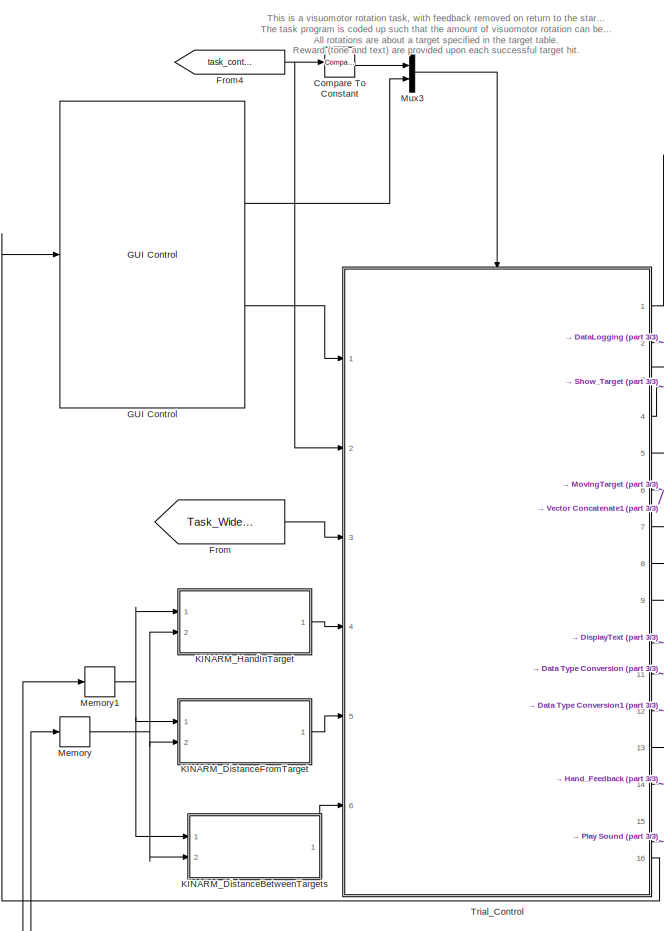
[diagram: root canvas - part 1/3, center side, full height]
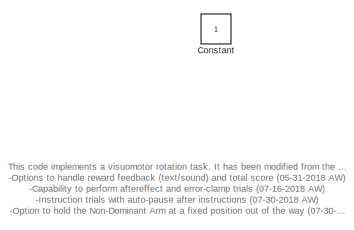
[diagram: root canvas - part 2/3, top left region]
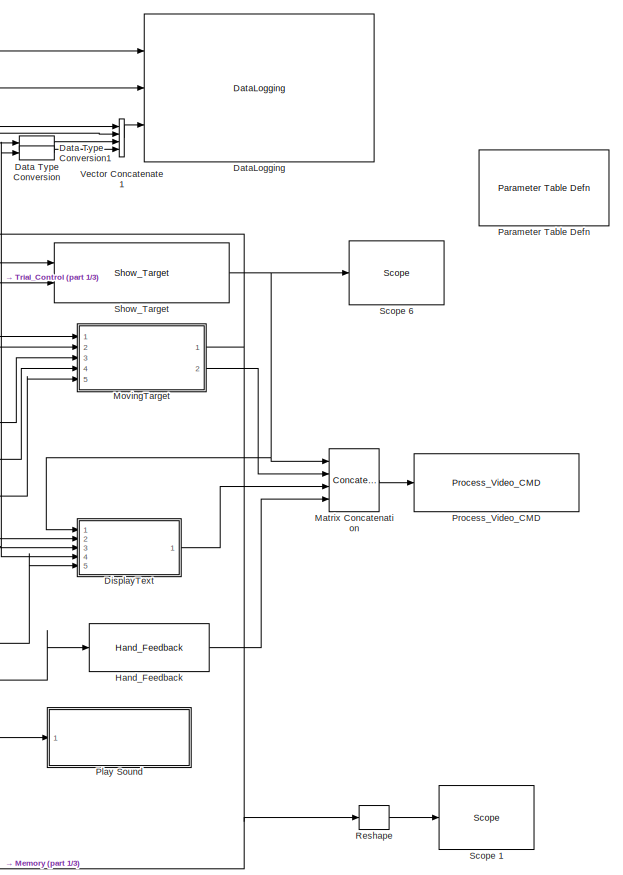
[diagram: root canvas - part 3/3, right side, full height]
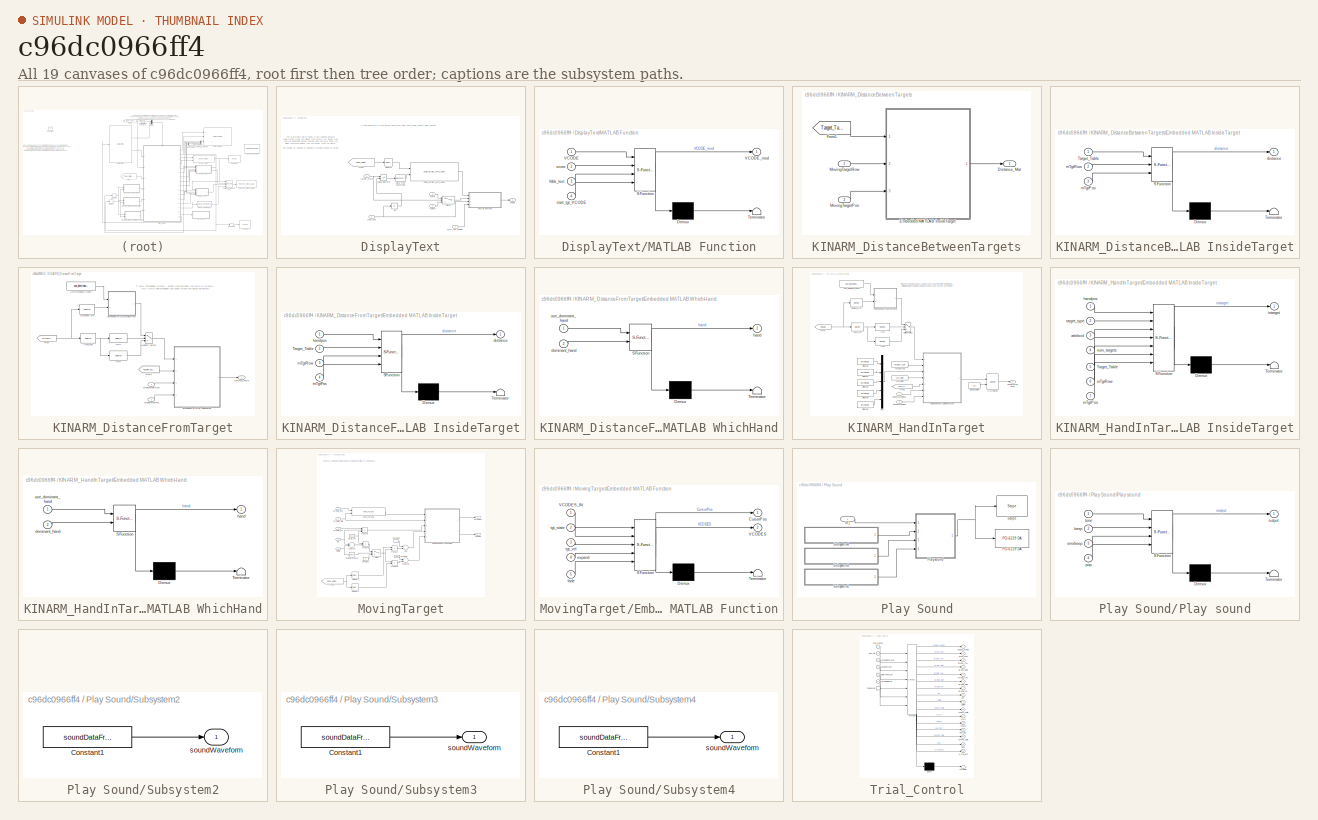
[diagram: thumbnail index - all 19 canvases of the model, root first then tree order]
MODEL slx_c96dc0966ff4
KIND model
CONFIG AbsTol = auto
CONFIG FixedStep = BKIN_STEP_TIME
CONFIG MaxStep = auto
CONFIG MinStep = auto
CONFIG RelTol = 1e-3
CONFIG SampleTimeConstraint = Unconstrained
CONFIG Solver = ode4
CONFIG SolverMode = MultiTasking
CONFIG SolverName = ode4
CONFIG StartFcn =  warndlg('Dexterit-E models cannot run under simulation. Please compile your model and run it from within Dexterit-E.');set_param(bdroot,'SimulationCommand','stop')
CONFIG StartTime = 0.0
CONFIG StopTime = inf
WORKSPACE source: MAT-file member
WORKSPACE BKIN_STEP_TIME = 0.00025
WORKSPACE col_x = 1
WORKSPACE START_TARGET_COL = 1
WORKSPACE END_TARGET_COL = 2
BLOCK [Reference] Compare To Constant  REF=simulink/Logic and Bit
Operations/Compare
To Constant
  OutDataTypeStr = boolean
  Ports = [1, 1]
  SourceBlock = simulink/Logic and Bit\nOperations/Compare\nTo Constant
  SourceType = Compare To Constant
  ZeroCross = on
  const = 1.0
  relop = >
BLOCK [Constant] Constant
  IOType = siggen
BLOCK [DataTypeConversion] Data Type Conversion
  RndMeth = Floor
  SaturateOnIntegerOverflow = off
BLOCK [DataTypeConversion] Data Type Conversion1
  RndMeth = Floor
  SaturateOnIntegerOverflow = off
BLOCK [Reference] DataLogging  REF=General/DataLogging
  Ports = [3]
  SourceBlock = General/DataLogging
  SourceType = DataLogging
  ecat_include = on
  log_analog_inputs = on
  log_event_codes = on
  show_time_remaining = off
BLOCK [SubSystem] DisplayText
  Ports = [5, 1]
  RequestExecContextInheritance = off
BLOCK [Abs] DisplayText/Abs
  SaturateOnIntegerOverflow = off
BLOCK [DataTypeConversion] DisplayText/Data Type Conversion
  OutDataTypeStr = double
  RndMeth = Floor
  SaturateOnIntegerOverflow = off
BLOCK [From] DisplayText/From
  GotoTag = Task_Wide_Parameters
  TagVisibility = global
BLOCK [Logic] DisplayText/Logical Operator
  AllPortsSameDT = off
  Operator = OR
  OutDataTypeStr = boolean
  Ports = [2, 1]
BLOCK [SubSystem] DisplayText/MATLAB Function
  ErrorFcn = Stateflow.Translate.translate
  PermitHierarchicalResolution = ExplicitOnly
  Ports = [4, 1]
  RequestExecContextInheritance = off
  SFBlockType = MATLAB Function
  TreatAsAtomicUnit = on
BLOCK [Demux] DisplayText/MATLAB Function/ Demux 
  Outputs = 1
  Ports = [1, 1]
BLOCK [S-Function] DisplayText/MATLAB Function/ SFunction 
  EnableBusSupport = on
  FunctionName = sf_sfun
  PortCounts = [4 2]
  Ports = [4, 2]
  Tag = Stateflow S-Function bubblechase 6
BLOCK [Terminator] DisplayText/MATLAB Function/ Terminator 
BLOCK [Inport] DisplayText/MATLAB Function/VCODE
  IconDisplay = Port number
BLOCK [Outport] DisplayText/MATLAB Function/VCODE_mod
  IconDisplay = Port number
BLOCK [Inport] DisplayText/MATLAB Function/fdbk_text
  IconDisplay = Port number
  Port = 3
BLOCK [Inport] DisplayText/MATLAB Function/score
  IconDisplay = Port number
  Port = 2
BLOCK [Inport] DisplayText/MATLAB Function/start_tgt_VCODE
  IconDisplay = Port number
  Port = 4
BLOCK [Selector] DisplayText/Selector
  Indices = [K_SCORETEXT_ROW]
  Ports = [1, 1]
BLOCK [Reference] DisplayText/Show_Target_With_Label  REF=Video/Show_Target_With_Label
  Ports = [2, 1]
  SourceBlock = Video/Show_Target_With_Label
  SourceType = Show_Target_With_Label
  attribcol1 = [COLOR 0 0 VISUAL_RADIUS VISUAL_RADIUS 0 LABEL COLOR LABEL_HEIGHT]
  attribcol2 = [0 0 0 0 0 0 0 0 0]
  attribcol3 = [0 0 0 0 0 0 0 0 0]
  attribcol4 = [0 0 0 0 0 0 0 0 0]
  attribcol5 = [0 0 0 0 0 0 0 0 0]
  num_states = 1
  opacity = 100
  source = dialog
  stateindices_padding = [0 0;0 0;0 0;0 0;0 0]
  target_display = Both subject and operator displays
  target_type = Rectangle
BLOCK [Switch] DisplayText/Switch
  Criteria = u2 > Threshold
  InputSameDT = off
  SaturateOnIntegerOverflow = off
  Threshold = 1.5
BLOCK [Outport] DisplayText/VCODE
  IconDisplay = Port number
BLOCK [Inport] DisplayText/fdbk_text
  IconDisplay = Port number
  OutDataTypeStr = int32
  Port = 5
BLOCK [Inport] DisplayText/reward
  IconDisplay = Port number
  OutDataTypeStr = int32
  Port = 4
BLOCK [Inport] DisplayText/score
  IconDisplay = Port number
  OutDataTypeStr = int32
  Port = 3
BLOCK [Inport] DisplayText/start_tgt_VCODE
  IconDisplay = Port number
  OutDataTypeStr = double
BLOCK [Inport] DisplayText/target_state
  IconDisplay = Port number
  OutDataTypeStr = double
  Port = 2
BLOCK [From] From
  GotoTag = Task_Wide_Parameters
  TagVisibility = global
BLOCK [From] From4
  GotoTag = task_control_button
  TagVisibility = global
BLOCK [Reference] GUI Control  REF=General/GUI Control
  Lcols = 4
  Ports = [1, 2]
  SourceBlock = General/GUI Control
  SourceType = GUI Control
  Target_Type = 1
  Vcols = 3
  XYcols = [1 2]
  indices_padding = [0 0 0 0;0 0 0 0]
  load_table_rows = 20
  show_repeat_trial_flag = off
  target_table_rows = 32
  target_type_str = Circle
  task_version = 1.0
  tp_table_rows = 50
  use_custom_tp = off
BLOCK [Reference] Hand_Feedback  REF=KINARM_general/Hand_Feedback
  Ports = [1, 1]
  SourceBlock = KINARM_general/Hand_Feedback
  SourceType = Hand_Feedback
  feedback_cntl_src = status only
BLOCK [SubSystem] KINARM_DistanceBetweenTargets
  Ports = [2, 1]
  RequestExecContextInheritance = off
BLOCK [Outport] KINARM_DistanceBetweenTargets/Distance_Mat
  IconDisplay = Port number
BLOCK [SubSystem] KINARM_DistanceBetweenTargets/Embedded MATLAB InsideTarget
  ErrorFcn = Stateflow.Translate.translate
  PermitHierarchicalResolution = ExplicitOnly
  Ports = [3, 1]
  RequestExecContextInheritance = off
  SFBlockType = MATLAB Function
  TreatAsAtomicUnit = on
BLOCK [Demux] KINARM_DistanceBetweenTargets/Embedded MATLAB InsideTarget/ Demux 
  Outputs = 1
  Ports = [1, 1]
BLOCK [S-Function] KINARM_DistanceBetweenTargets/Embedded MATLAB InsideTarget/ SFunction 
  EnableBusSupport = on
  FunctionName = sf_sfun
  PortCounts = [3 2]
  Ports = [3, 2]
  Tag = Stateflow S-Function bubblechase 8
BLOCK [Terminator] KINARM_DistanceBetweenTargets/Embedded MATLAB InsideTarget/ Terminator 
BLOCK [Inport] KINARM_DistanceBetweenTargets/Embedded MATLAB InsideTarget/Target_Table
  IconDisplay = Port number
BLOCK [Outport] KINARM_DistanceBetweenTargets/Embedded MATLAB InsideTarget/distance
  IconDisplay = Port number
BLOCK [Inport] KINARM_DistanceBetweenTargets/Embedded MATLAB InsideTarget/mTgtPos
  IconDisplay = Port number
  Port = 3
BLOCK [Inport] KINARM_DistanceBetweenTargets/Embedded MATLAB InsideTarget/mTgtRow
  IconDisplay = Port number
  Port = 2
BLOCK [From] KINARM_DistanceBetweenTargets/From1
  CloseFcn = tagdialog Close
  GotoTag = Target_Table
  TagVisibility = global
BLOCK [Inport] KINARM_DistanceBetweenTargets/MovingTargetPos
  IconDisplay = Port number
  Port = 2
BLOCK [Inport] KINARM_DistanceBetweenTargets/MovingTargetRow
  IconDisplay = Port number
BLOCK [SubSystem] KINARM_DistanceFromTarget
  Ports = [2, 1]
  RequestExecContextInheritance = off
BLOCK [Selector] KINARM_DistanceFromTarget/Arm1
  IndexOptions = Index vector (dialog),Select all
  Indices = 1,-1
  InputPortWidth = 3
  NumberOfDimensions = 2
  OutputSizes = slselsubs([(-2),(-2)],1),slselsubs([(-2),(-2)],2)
  Ports = [1, 1]
BLOCK [Selector] KINARM_DistanceFromTarget/Arm2
  IndexOptions = Index vector (dialog),Select all
  Indices = 2,-1
  InputPortWidth = 3
  NumberOfDimensions = 2
  OutputSizes = slselsubs([(-2),(-2)],1),slselsubs([(-2),(-2)],2)
  Ports = [1, 1]
BLOCK [Outport] KINARM_DistanceFromTarget/Distance_Vector
  IconDisplay = Port number
BLOCK [Selector] KINARM_DistanceFromTarget/Dominant_Arm
  IndexOptions = Index vector (dialog),Index vector (dialog)
  Indices = [3],[1]
  InputPortWidth = 3
  NumberOfDimensions = 2
  OutputSizes = slselsubs([(-2),(-2)],1),slselsubs([(-2),(-2)],2)
  Ports = [1, 1]
BLOCK [SubSystem] KINARM_DistanceFromTarget/Embedded MATLAB InsideTarget
  ErrorFcn = Stateflow.Translate.translate
  PermitHierarchicalResolution = ExplicitOnly
  Ports = [4, 1]
  RequestExecContextInheritance = off
  SFBlockType = MATLAB Function
  TreatAsAtomicUnit = on
BLOCK [Demux] KINARM_DistanceFromTarget/Embedded MATLAB InsideTarget/ Demux 
  Outputs = 1
  Ports = [1, 1]
BLOCK [S-Function] KINARM_DistanceFromTarget/Embedded MATLAB InsideTarget/ SFunction 
  EnableBusSupport = on
  FunctionName = sf_sfun
  PortCounts = [4 2]
  Ports = [4, 2]
  Tag = Stateflow S-Function bubblechase 5
BLOCK [Terminator] KINARM_DistanceFromTarget/Embedded MATLAB InsideTarget/ Terminator 
BLOCK [Inport] KINARM_DistanceFromTarget/Embedded MATLAB InsideTarget/Target_Table
  IconDisplay = Port number
  Port = 2
BLOCK [Outport] KINARM_DistanceFromTarget/Embedded MATLAB InsideTarget/distance
  IconDisplay = Port number
BLOCK [Inport] KINARM_DistanceFromTarget/Embedded MATLAB InsideTarget/handpos
  IconDisplay = Port number
BLOCK [Inport] KINARM_DistanceFromTarget/Embedded MATLAB InsideTarget/mTgtPos
  IconDisplay = Port number
  Port = 4
BLOCK [Inport] KINARM_DistanceFromTarget/Embedded MATLAB InsideTarget/mTgtRow
  IconDisplay = Port number
  Port = 3
BLOCK [SubSystem] KINARM_DistanceFromTarget/Embedded MATLAB WhichHand
  ErrorFcn = Stateflow.Translate.translate
  PermitHierarchicalResolution = ExplicitOnly
  Ports = [2, 1]
  RequestExecContextInheritance = off
  SFBlockType = MATLAB Function
  TreatAsAtomicUnit = on
BLOCK [Demux] KINARM_DistanceFromTarget/Embedded MATLAB WhichHand/ Demux 
  Outputs = 1
  Ports = [1, 1]
BLOCK [S-Function] KINARM_DistanceFromTarget/Embedded MATLAB WhichHand/ SFunction 
  EnableBusSupport = on
  FunctionName = sf_sfun
  PortCounts = [2 2]
  Ports = [2, 2]
  Tag = Stateflow S-Function bubblechase 4
BLOCK [Terminator] KINARM_DistanceFromTarget/Embedded MATLAB WhichHand/ Terminator 
BLOCK [Inport] KINARM_DistanceFromTarget/Embedded MATLAB WhichHand/dominant_hand
  IconDisplay = Port number
  Port = 2
BLOCK [Outport] KINARM_DistanceFromTarget/Embedded MATLAB WhichHand/hand
  IconDisplay = Port number
BLOCK [Inport] KINARM_DistanceFromTarget/Embedded MATLAB WhichHand/use_dominant_hand
  IconDisplay = Port number
BLOCK [From] KINARM_DistanceFromTarget/From
  CloseFcn = tagdialog Close
  GotoTag = KINdata
  TagVisibility = global
BLOCK [From] KINARM_DistanceFromTarget/From1
  CloseFcn = tagdialog Close
  GotoTag = Target_Table
  TagVisibility = global
BLOCK [Selector] KINARM_DistanceFromTarget/Hand_Pos
  IndexOptions = Select all,Index vector (dialog)
  Indices = -1,[23,24]
  InputPortWidth = 3
  NumberOfDimensions = 2
  OutputSizes = slselsubs([(-2),(-2)],1),slselsubs([(-2),(-2)],2)
  Ports = [1, 1]
BLOCK [Inport] KINARM_DistanceFromTarget/MovingTargetPos
  IconDisplay = Port number
  Port = 2
BLOCK [Inport] KINARM_DistanceFromTarget/MovingTargetRow
  IconDisplay = Port number
BLOCK [MultiPortSwitch] KINARM_DistanceFromTarget/Multiport Switch
  InputSameDT = off
  Inputs = 2
  Ports = [3, 1]
  SaturateOnIntegerOverflow = off
BLOCK [Constant] KINARM_DistanceFromTarget/Use_Dominant_Hand?
  Value = use_dominant_hand
BLOCK [SubSystem] KINARM_HandInTarget
  Ports = [2, 1]
  RequestExecContextInheritance = off
BLOCK [Selector] KINARM_HandInTarget/Arm1
  IndexOptions = Index vector (dialog),Select all
  Indices = 1,-1
  InputPortWidth = 3
  NumberOfDimensions = 2
  OutputSizes = slselsubs([(-2),(-2)],1),slselsubs([(-2),(-2)],2)
  Ports = [1, 1]
BLOCK [Selector] KINARM_HandInTarget/Arm2
  IndexOptions = Index vector (dialog),Select all
  Indices = 2,-1
  InputPortWidth = 3
  NumberOfDimensions = 2
  OutputSizes = slselsubs([(-2),(-2)],1),slselsubs([(-2),(-2)],2)
  Ports = [1, 1]
BLOCK [Selector] KINARM_HandInTarget/Array Selector
  IndexOptions = Select all,Index vector (port)
  Indices = -1,1
  InputPortWidth = 3
  NumberOfDimensions = 2
  OutputSizes = slselsubs([(-2),(-2)],1),slselsubs([(-2),(-2)],2)
  Ports = [2, 1]
BLOCK [Selector] KINARM_HandInTarget/Dominant_Arm
  IndexOptions = Index vector (dialog),Index vector (dialog)
  Indices = [3],[1]
  InputPortWidth = 3
  NumberOfDimensions = 2
  OutputSizes = slselsubs([(-2),(-2)],1),slselsubs([(-2),(-2)],2)
  Ports = [1, 1]
BLOCK [SubSystem] KINARM_HandInTarget/Embedded MATLAB InsideTarget
  ErrorFcn = Stateflow.Translate.translate
  PermitHierarchicalResolution = ExplicitOnly
  Ports = [7, 1]
  RTWFileNameOpts = Use function name
  RTWSystemCode = Nonreusable function
  RequestExecContextInheritance = off
  SFBlockType = MATLAB Function
  TreatAsAtomicUnit = on
BLOCK [Demux] KINARM_HandInTarget/Embedded MATLAB InsideTarget/ Demux 
  Outputs = 1
  Ports = [1, 1]
BLOCK [S-Function] KINARM_HandInTarget/Embedded MATLAB InsideTarget/ SFunction 
  EnableBusSupport = on
  FunctionName = sf_sfun
  PortCounts = [7 2]
  Ports = [7, 2]
  Tag = Stateflow S-Function bubblechase 2
BLOCK [Terminator] KINARM_HandInTarget/Embedded MATLAB InsideTarget/ Terminator 
BLOCK [Inport] KINARM_HandInTarget/Embedded MATLAB InsideTarget/Target_Table
  IconDisplay = Port number
  Port = 5
BLOCK [Inport] KINARM_HandInTarget/Embedded MATLAB InsideTarget/attribcol
  IconDisplay = Port number
  Port = 3
BLOCK [Inport] KINARM_HandInTarget/Embedded MATLAB InsideTarget/handpos
  IconDisplay = Port number
BLOCK [Outport] KINARM_HandInTarget/Embedded MATLAB InsideTarget/intarget
  IconDisplay = Port number
BLOCK [Inport] KINARM_HandInTarget/Embedded MATLAB InsideTarget/mTgtPos
  IconDisplay = Port number
  Port = 7
BLOCK [Inport] KINARM_HandInTarget/Embedded MATLAB InsideTarget/mTgtRow
  IconDisplay = Port number
  Port = 6
BLOCK [Inport] KINARM_HandInTarget/Embedded MATLAB InsideTarget/num_targets
  IconDisplay = Port number
  Port = 4
BLOCK [Inport] KINARM_HandInTarget/Embedded MATLAB InsideTarget/target_type
  IconDisplay = Port number
  Port = 2
BLOCK [SubSystem] KINARM_HandInTarget/Embedded MATLAB WhichHand
  ErrorFcn = Stateflow.Translate.translate
  PermitHierarchicalResolution = ExplicitOnly
  Ports = [2, 1]
  RequestExecContextInheritance = off
  SFBlockType = MATLAB Function
  TreatAsAtomicUnit = on
BLOCK [Demux] KINARM_HandInTarget/Embedded MATLAB WhichHand/ Demux 
  Outputs = 1
  Ports = [1, 1]
BLOCK [S-Function] KINARM_HandInTarget/Embedded MATLAB WhichHand/ SFunction 
  EnableBusSupport = on
  FunctionName = sf_sfun
  PortCounts = [2 2]
  Ports = [2, 2]
  Tag = Stateflow S-Function bubblechase 9
BLOCK [Terminator] KINARM_HandInTarget/Embedded MATLAB WhichHand/ Terminator 
BLOCK [Inport] KINARM_HandInTarget/Embedded MATLAB WhichHand/dominant_hand
  IconDisplay = Port number
  Port = 2
BLOCK [Outport] KINARM_HandInTarget/Embedded MATLAB WhichHand/hand
  IconDisplay = Port number
BLOCK [Inport] KINARM_HandInTarget/Embedded MATLAB WhichHand/use_dominant_hand
  IconDisplay = Port number
BLOCK [From] KINARM_HandInTarget/From
  CloseFcn = tagdialog Close
  GotoTag = KINdata
  TagVisibility = global
BLOCK [From] KINARM_HandInTarget/From1
  CloseFcn = tagdialog Close
  GotoTag = Target_Table
  TagVisibility = global
BLOCK [Outport] KINARM_HandInTarget/HandInTarget_Vector
  IconDisplay = Port number
BLOCK [Selector] KINARM_HandInTarget/Hand_Pos
  IndexOptions = Select all,Index vector (dialog)
  Indices = -1,[23,24]
  InputPortWidth = 3
  NumberOfDimensions = 2
  OutputSizes = slselsubs([(-2),(-2)],1),slselsubs([(-2),(-2)],2)
  Ports = [1, 1]
BLOCK [Inport] KINARM_HandInTarget/MovingTargetPos
  IconDisplay = Port number
  Port = 2
BLOCK [Inport] KINARM_HandInTarget/MovingTargetRow
  IconDisplay = Port number
BLOCK [MultiPortSwitch] KINARM_HandInTarget/Multiport Switch
  InputSameDT = off
  Inputs = 2
  Ports = [3, 1]
  SaturateOnIntegerOverflow = off
BLOCK [Mux] KINARM_HandInTarget/Mux
  DisplayOption = bar
  Inputs = 5
  Ports = [5, 1]
BLOCK [Constant] KINARM_HandInTarget/Selected States
  Value = [1]
BLOCK [Constant] KINARM_HandInTarget/Target_Type
  Value = target_type
BLOCK [Constant] KINARM_HandInTarget/Use_Dominant_Hand?
  Value = use_dominant_hand
BLOCK [Constant] KINARM_HandInTarget/attribcol1
  Value = attribcol1
BLOCK [Constant] KINARM_HandInTarget/attribcol2
  Value = attribcol2
BLOCK [Constant] KINARM_HandInTarget/attribcol3
  Value = attribcol3
BLOCK [Constant] KINARM_HandInTarget/attribcol4
  Value = attribcol4
BLOCK [Constant] KINARM_HandInTarget/attribcol5
  Value = attribcol5
BLOCK [Constant] KINARM_HandInTarget/num_states
  Value = num_states
BLOCK [Concatenate] Matrix Concatenation
  Mode = Multidimensional array
  NumInputs = 4
  Ports = [4, 1]
BLOCK [Memory] Memory
  InheritSampleTime = on
BLOCK [Memory] Memory1
  InheritSampleTime = on
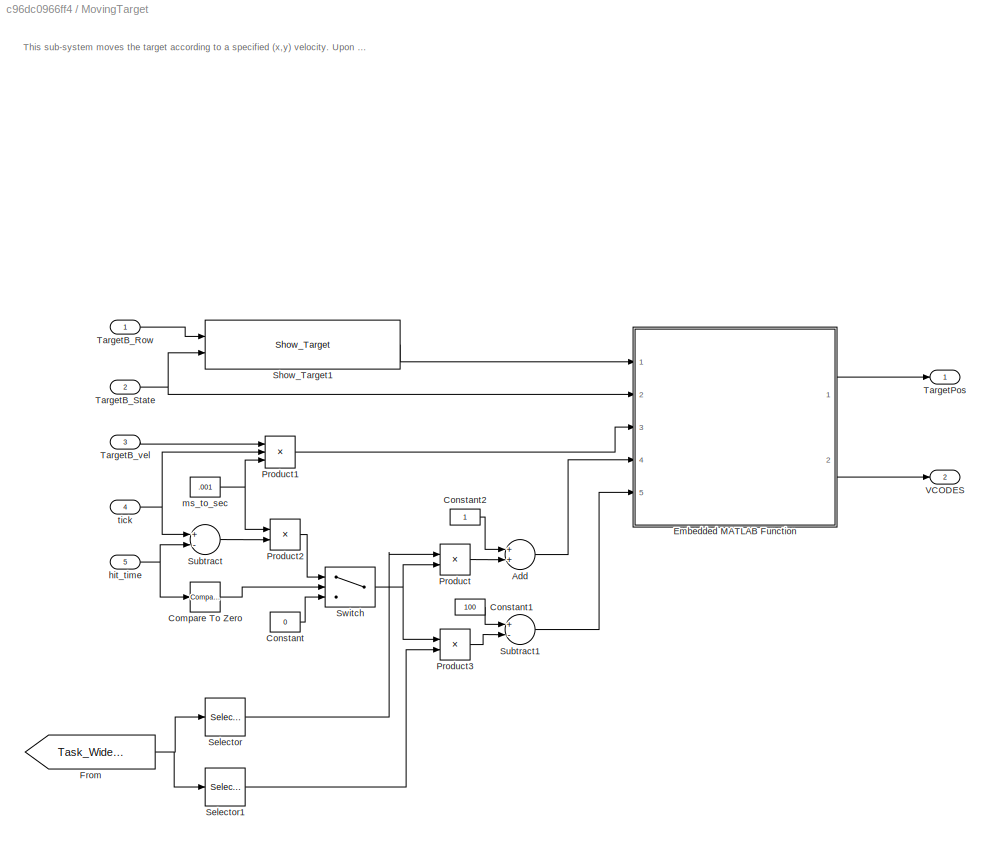
BLOCK [SubSystem] MovingTarget
  Ports = [5, 2]
  RequestExecContextInheritance = off
BLOCK [Sum] MovingTarget/Add
  InputSameDT = off
  OutDataTypeStr = Inherit: Inherit via internal rule
  Ports = [2, 1]
  SaturateOnIntegerOverflow = off
BLOCK [Reference] MovingTarget/Compare To Zero  REF=simulink/Logic and Bit
Operations/Compare
To Zero
  OutDataTypeStr = boolean
  Ports = [1, 1]
  SourceBlock = simulink/Logic and Bit\nOperations/Compare\nTo Zero
  SourceType = Compare To Zero
  ZeroCross = on
  relop = >=
BLOCK [Constant] MovingTarget/Constant
  Value = 0
BLOCK [Constant] MovingTarget/Constant1
  Value = 100
BLOCK [Constant] MovingTarget/Constant2
BLOCK [SubSystem] MovingTarget/Embedded MATLAB Function
  ErrorFcn = Stateflow.Translate.translate
  PermitHierarchicalResolution = ExplicitOnly
  Ports = [5, 2]
  RequestExecContextInheritance = off
  SFBlockType = MATLAB Function
  TreatAsAtomicUnit = on
BLOCK [Demux] MovingTarget/Embedded MATLAB Function/ Demux 
  Outputs = 1
  Ports = [1, 1]
BLOCK [S-Function] MovingTarget/Embedded MATLAB Function/ SFunction 
  EnableBusSupport = on
  FunctionName = sf_sfun
  PortCounts = [5 3]
  Ports = [5, 3]
  Tag = Stateflow S-Function bubblechase 3
BLOCK [Terminator] MovingTarget/Embedded MATLAB Function/ Terminator 
BLOCK [Outport] MovingTarget/Embedded MATLAB Function/CursorPos
  IconDisplay = Port number
BLOCK [Outport] MovingTarget/Embedded MATLAB Function/VCODES
  IconDisplay = Port number
  Port = 2
BLOCK [Inport] MovingTarget/Embedded MATLAB Function/VCODES_IN
  IconDisplay = Port number
BLOCK [Inport] MovingTarget/Embedded MATLAB Function/expand
  IconDisplay = Port number
  Port = 4
BLOCK [Inport] MovingTarget/Embedded MATLAB Function/fade
  IconDisplay = Port number
  Port = 5
BLOCK [Inport] MovingTarget/Embedded MATLAB Function/tgt_state
  IconDisplay = Port number
  Port = 2
BLOCK [Inport] MovingTarget/Embedded MATLAB Function/tgt_vel
  IconDisplay = Port number
  Port = 3
BLOCK [From] MovingTarget/From
  GotoTag = Task_Wide_Parameters
  TagVisibility = global
BLOCK [Product] MovingTarget/Product
  InputSameDT = off
  OutDataTypeStr = Inherit: Inherit via internal rule
  Ports = [2, 1]
  RndMeth = Floor
  SaturateOnIntegerOverflow = off
BLOCK [Product] MovingTarget/Product1
  InputSameDT = off
  Inputs = 3
  OutDataTypeStr = Inherit: Inherit via internal rule
  Ports = [3, 1]
  RndMeth = Floor
  SaturateOnIntegerOverflow = off
BLOCK [Product] MovingTarget/Product2
  InputSameDT = off
  OutDataTypeStr = Inherit: Inherit via internal rule
  Ports = [2, 1]
  RndMeth = Floor
  SaturateOnIntegerOverflow = off
BLOCK [Product] MovingTarget/Product3
  InputSameDT = off
  OutDataTypeStr = Inherit: Inherit via internal rule
  Ports = [2, 1]
  RndMeth = Floor
  SaturateOnIntegerOverflow = off
BLOCK [Selector] MovingTarget/Selector
  Indices = [K_POP_R_EXPAND]
  InputPortWidth = 50
  Ports = [1, 1]
BLOCK [Selector] MovingTarget/Selector1
  Indices = [K_POP_FADE]
  InputPortWidth = 50
  Ports = [1, 1]
BLOCK [Reference] MovingTarget/Show_Target1  REF=Video/Show_Target
  Ports = [2, 1]
  SourceBlock = Video/Show_Target
  SourceType = Show_Target
  attribcol1 = [COLOR STROKE_COLOR STROKE_WIDTH VISUAL_RADIUS]
  attribcol2 = [0 STROKE_COLOR STROKE_WIDTH VISUAL_RADIUS]
  attribcol3 = [0 0 0 0]
  attribcol4 = [0 0 0 0]
  attribcol5 = [0 0 0 0]
  num_col = 4
  num_states = 2
  opacity = 100
  source = dialog
  stateindices_padding = [0 0 0 0 0 0 0;0 0 0 0 0 0 0;0 0 0 0 0 0 0;0 0 0 0 0 0 0;0 0 0 0 0 0 0]
  target_display = Both subject and operator displays
  target_type = Circle
BLOCK [Sum] MovingTarget/Subtract
  InputSameDT = off
  Inputs = +-
  OutDataTypeStr = Inherit: Inherit via internal rule
  Ports = [2, 1]
  SaturateOnIntegerOverflow = off
BLOCK [Sum] MovingTarget/Subtract1
  InputSameDT = off
  Inputs = +-
  OutDataTypeStr = Inherit: Inherit via internal rule
  Ports = [2, 1]
  SaturateOnIntegerOverflow = off
BLOCK [Switch] MovingTarget/Switch
  Criteria = u2 > Threshold
  InputSameDT = off
  SaturateOnIntegerOverflow = off
BLOCK [Inport] MovingTarget/TargetB_Row
  IconDisplay = Port number
BLOCK [Inport] MovingTarget/TargetB_State
  IconDisplay = Port number
  Port = 2
BLOCK [Inport] MovingTarget/TargetB_vel
  IconDisplay = Port number
  Port = 3
BLOCK [Outport] MovingTarget/TargetPos
  IconDisplay = Port number
BLOCK [Outport] MovingTarget/VCODES
  IconDisplay = Port number
  Port = 2
BLOCK [Inport] MovingTarget/hit_time
  IconDisplay = Port number
  Port = 5
BLOCK [Constant] MovingTarget/ms_to_sec
  Value = .001
BLOCK [Inport] MovingTarget/tick
  IconDisplay = Port number
  Port = 4
BLOCK [Mux] Mux3
  DisplayOption = bar
  Inputs = 2
  Ports = [2, 1]
BLOCK [Reference] Parameter Table Defn  REF=General/Parameter Table Defn
  Ports = []
  ShowInLibBrowser = 0
  SourceBlock = General/Parameter Table Defn
  UserDataPersistent = on
BLOCK [SubSystem] Play Sound
  Ports = [1]
  RequestExecContextInheritance = off
BLOCK [Inport] Play Sound/In1
  IconDisplay = Signal name
BLOCK [Reference] Play Sound/PCI-6229 DA  REF=xpcnilib/D//A/M Series/PCI-6229 DA
  Ports = [1]
  SourceBlock = xpcnilib/D//A/M Series/PCI-6229 DA
  SourceType = danipci6229
  channel = [1]
  initValue = [0]
  reset = [1]
  sampletime = -1
  slot = -1
BLOCK [SubSystem] Play Sound/Play sound
  ErrorFcn = Stateflow.Translate.translate
  PermitHierarchicalResolution = ExplicitOnly
  Ports = [4, 1]
  RequestExecContextInheritance = off
  SFBlockType = MATLAB Function
  TreatAsAtomicUnit = on
BLOCK [Demux] Play Sound/Play sound/ Demux 
  Outputs = 1
  Ports = [1, 1]
BLOCK [S-Function] Play Sound/Play sound/ SFunction 
  EnableBusSupport = on
  FunctionName = sf_sfun
  PortCounts = [4 2]
  Ports = [4, 2]
  Tag = Stateflow S-Function bubblechase 7
BLOCK [Terminator] Play Sound/Play sound/ Terminator 
BLOCK [Inport] Play Sound/Play sound/beep
  IconDisplay = Port number
  Port = 2
BLOCK [Inport] Play Sound/Play sound/errorbeep
  IconDisplay = Port number
  Port = 3
BLOCK [Outport] Play Sound/Play sound/output
  IconDisplay = Port number
BLOCK [Inport] Play Sound/Play sound/pop
  IconDisplay = Port number
  Port = 4
BLOCK [Inport] Play Sound/Play sound/tone
  IconDisplay = Port number
BLOCK [Reference] Play Sound/Scope   REF=slrtlib/Displays and
Logging/Scope 
  Ports = [1]
  SourceBlock = slrtlib/Displays and\nLogging/Scope
  SourceType = xpcscopeblock
  autorestart = off
  autostart = on
  dynamicfilemode = off
  filename = data.dat
  formatstr = '%15.6f'
  grid = on
  interleave = 1
  maxwritefilesize = 512*1024^2
  mode = Lazy
  noprepostsamples = 0
  nosamples = 4000
  scopeno = 1
  scopetype = Target
  triggerlevel = 0.0
  triggermode = FreeRun
  triggersample = 0
  triggerscope = 1
  triggersignal = 1
  triggerslope = Either
  trigsignalfromport = off
  viewmode = Graphical redraw
  writesize = 512
  ylimits = [0,0]
BLOCK [SubSystem] Play Sound/Subsystem2
  Ports = [0, 1]
  RequestExecContextInheritance = off
BLOCK [Constant] Play Sound/Subsystem2/Constant1
  Value = soundDataFromFile
BLOCK [Outport] Play Sound/Subsystem2/soundWaveform
  IconDisplay = Port number
BLOCK [SubSystem] Play Sound/Subsystem3
  Ports = [0, 1]
  RequestExecContextInheritance = off
BLOCK [Constant] Play Sound/Subsystem3/Constant1
  Value = soundDataFromFile
BLOCK [Outport] Play Sound/Subsystem3/soundWaveform
  IconDisplay = Port number
BLOCK [SubSystem] Play Sound/Subsystem4
  Ports = [0, 1]
  RequestExecContextInheritance = off
BLOCK [Constant] Play Sound/Subsystem4/Constant1
  Value = soundDataFromFile
BLOCK [Outport] Play Sound/Subsystem4/soundWaveform
  IconDisplay = Port number
BLOCK [Reference] Process_Video_CMD  REF=Video/Process_Video_CMD
  Ports = [1]
  SourceBlock = Video/Process_Video_CMD
  SourceType = Process_Video_CMD
  video_delay = 50
BLOCK [Reshape] Reshape
  Ports = [1, 1]
BLOCK [Reference] Scope 1  REF=slrtlib/Displays and
Logging/Scope 
  Ports = [1]
  SourceBlock = slrtlib/Displays and\nLogging/Scope
  SourceType = xpcscopeblock
  autorestart = off
  autostart = on
  dynamicfilemode = off
  filename = data.dat
  formatstr = '%15.6f'
  grid = on
  interleave = 1
  maxwritefilesize = 512*1024^2
  mode = Lazy
  noprepostsamples = 0
  nosamples = 250
  scopeno = 6
  scopetype = Target
  triggerlevel = 0.0
  triggermode = FreeRun
  triggersample = 0
  triggerscope = 1
  triggersignal = 1
  triggerslope = Either
  trigsignalfromport = off
  viewmode = Numerical
  writesize = 512
  ylimits = [0,0]
BLOCK [Reference] Scope 6  REF=slrtlib/Displays and
Logging/Scope 
  Ports = [1]
  SourceBlock = slrtlib/Displays and\nLogging/Scope
  SourceType = xpcscopeblock
  autorestart = off
  autostart = on
  dynamicfilemode = off
  filename = data.dat
  formatstr = '%15.6f'
  grid = on
  interleave = 1
  maxwritefilesize = 512*1024^2
  mode = Lazy
  noprepostsamples = 0
  nosamples = 250
  scopeno = 4
  scopetype = Target
  triggerlevel = 0.0
  triggermode = FreeRun
  triggersample = 0
  triggerscope = 1
  triggersignal = 1
  triggerslope = Either
  trigsignalfromport = off
  viewmode = Numerical
  writesize = 512
  ylimits = [0,0]
BLOCK [Reference] Show_Target  REF=Video/Show_Target
  Ports = [2, 1]
  SourceBlock = Video/Show_Target
  SourceType = Show_Target
  attribcol1 = [COLOR 0 0 VISUAL_RADIUS]
  attribcol2 = [0 0 0 0]
  attribcol3 = [0 0 0 0]
  attribcol4 = [0 0 0 0]
  attribcol5 = [0 0 0 0]
  num_col = 4
  num_states = 1
  opacity = 100
  source = dialog
  stateindices_padding = [0 0 0 0 0 0 0;0 0 0 0 0 0 0;0 0 0 0 0 0 0;0 0 0 0 0 0 0;0 0 0 0 0 0 0]
  target_display = Both subject and operator displays
  target_type = Circle
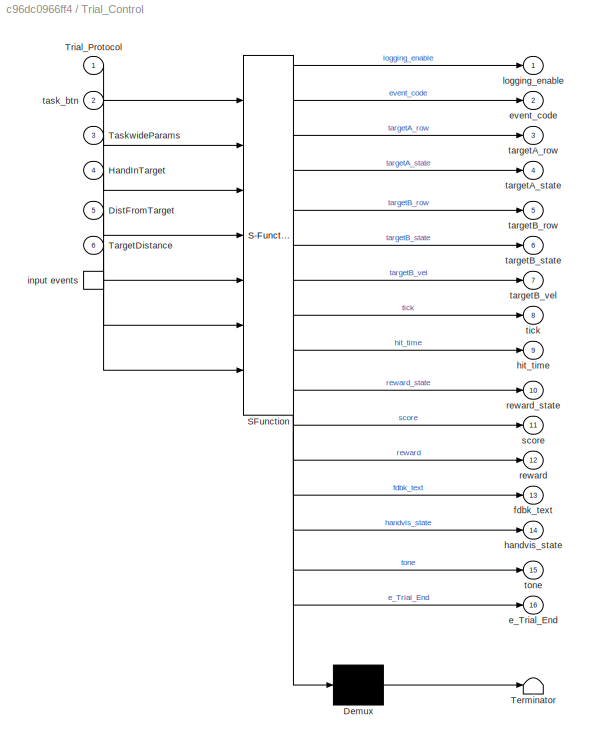
BLOCK [SubSystem] Trial_Control
  ErrorFcn = Stateflow.Translate.translate
  PermitHierarchicalResolution = ExplicitOnly
  Ports = [6, 16, 0, 1]
  RequestExecContextInheritance = off
  SFBlockType = Chart
  TreatAsAtomicUnit = on
BLOCK [Demux] Trial_Control/ Demux 
  Outputs = 1
  Ports = [1, 1]
BLOCK [S-Function] Trial_Control/ SFunction 
  EnableBusSupport = on
  FunctionName = sf_sfun
  PortCounts = [7 17]
  Ports = [7, 17]
  Tag = Stateflow S-Function bubblechase 1
BLOCK [Terminator] Trial_Control/ Terminator 
BLOCK [TriggerPort] Trial_Control/ input events 
  Ports = [0, 1]
  ShowOutputPort = on
  TriggerType = either
BLOCK [Inport] Trial_Control/DistFromTarget
  IconDisplay = Port number
  Port = 5
BLOCK [Inport] Trial_Control/HandInTarget
  IconDisplay = Port number
  Port = 4
BLOCK [Inport] Trial_Control/TargetDistance
  IconDisplay = Port number
  Port = 6
BLOCK [Inport] Trial_Control/TaskwideParams
  IconDisplay = Port number
  Port = 3
BLOCK [Inport] Trial_Control/Trial_Protocol
  IconDisplay = Port number
BLOCK [Outport] Trial_Control/e_Trial_End
  IconDisplay = Port number
  Port = 16
BLOCK [Outport] Trial_Control/event_code
  IconDisplay = Port number
  Port = 2
BLOCK [Outport] Trial_Control/fdbk_text
  IconDisplay = Port number
  Port = 13
BLOCK [Outport] Trial_Control/handvis_state
  IconDisplay = Port number
  Port = 14
BLOCK [Outport] Trial_Control/hit_time
  IconDisplay = Port number
  Port = 9
BLOCK [Outport] Trial_Control/logging_enable
  IconDisplay = Port number
BLOCK [Outport] Trial_Control/reward
  IconDisplay = Port number
  Port = 12
BLOCK [Outport] Trial_Control/reward_state
  IconDisplay = Port number
  Port = 10
BLOCK [Outport] Trial_Control/score
  IconDisplay = Port number
  Port = 11
BLOCK [Outport] Trial_Control/targetA_row
  IconDisplay = Port number
  Port = 3
BLOCK [Outport] Trial_Control/targetA_state
  IconDisplay = Port number
  Port = 4
BLOCK [Outport] Trial_Control/targetB_row
  IconDisplay = Port number
  Port = 5
BLOCK [Outport] Trial_Control/targetB_state
  IconDisplay = Port number
  Port = 6
BLOCK [Outport] Trial_Control/targetB_vel
  IconDisplay = Port number
  Port = 7
BLOCK [Inport] Trial_Control/task_btn
  IconDisplay = Port number
  Port = 2
BLOCK [Outport] Trial_Control/tick
  IconDisplay = Port number
  Port = 8
BLOCK [Outport] Trial_Control/tone
  IconDisplay = Port number
  Port = 15
BLOCK [Concatenate] Vector Concatenate1
  NumInputs = 4
  Ports = [4, 1]
ANNOTATION (root): This code implements a visuomotor rotation task. It has been modified from the Kinarm Sample VMR Task. It how has the following additional features: -Options to handle reward feedback (text/sound) and total score (05-31-2018 AW) -Capability to perform aftereffect and error-clamp trials (07-16-2018 AW) -Instruction trials with auto-pause after instructions (07-30-2018 AW) -Option to hold the Non-Do...<+61ch>
ANNOTATION (root): This is a visuomotor rotation task, with feedback removed on return to the starting position. The task program is coded up such that the amount of visuomotor rotation can be specified explicitly, or as an increment compared to the previous rotation. All rotations are about a target specified in the target table. Reward (tone and text) are provided upon each successful target hit.
ANNOTATION DisplayText: The state index matrix needs to get padded because some target types are bigger than others (i.e. longer row) and the Embedded Matlab function does not like it when you 'might' reference indices that are larger than the matrix. The number of columns of padding is changed based on target type, because Simulink requires all instances of the embedded Matlab function to have the same size input to 'st...<+12ch>
ANNOTATION DisplayText: [TARG_COLOR 0 0 WIDTH HEIGHT ROTATION LABEL_TEXT LABEL_COLOR LABEL_HEIGHT]
ANNOTATION KINARM_DistanceFromTarget: <copyright redacted>
ANNOTATION KINARM_HandInTarget: <copyright redacted>
ANNOTATION MovingTarget: This sub-system moves the target according to a specified (x,y) velocity. Upon target hit, it also animates the target explosion.
LINE Compare To Constant:1 -> Mux3:1
LINE Data Type Conversion1:1 -> Vector Concatenate1:4
LINE Data Type Conversion:1 -> Vector Concatenate1:3
LINE DisplayText/Abs:1 -> DisplayText/Logical Operator:2
LINE DisplayText/Data Type Conversion:1 -> DisplayText/Show_Target_With_Label:2
LINE DisplayText/From:1 -> DisplayText/Selector:1
LINE DisplayText/Logical Operator:1 -> DisplayText/Data Type Conversion:1
LINE DisplayText/MATLAB Function:1 -> DisplayText/VCODE:1
LINE DisplayText/Selector:1 -> DisplayText/Show_Target_With_Label:1
LINE DisplayText/Show_Target_With_Label:1 -> DisplayText/MATLAB Function:1
LINE DisplayText/Switch:1 -> DisplayText/MATLAB Function:2
NET DisplayText/fdbk_text:1 -> DisplayText/Abs:1, DisplayText/MATLAB Function:3
LINE DisplayText/reward:1 -> DisplayText/Switch:3
LINE DisplayText/score:1 -> DisplayText/Switch:1
LINE DisplayText/start_tgt_VCODE:1 -> DisplayText/MATLAB Function:4
NET DisplayText/target_state:1 -> DisplayText/Logical Operator:1, DisplayText/Switch:2
LINE DisplayText:1 -> Matrix Concatenation:3
NET From4:1 -> Compare To Constant:1, Trial_Control:2
LINE From:1 -> Trial_Control:3
LINE GUI Control:1 -> Mux3:2
LINE GUI Control:2 -> Trial_Control:1
LINE Hand_Feedback:1 -> Matrix Concatenation:4
LINE KINARM_DistanceBetweenTargets/Embedded MATLAB InsideTarget:1 -> KINARM_DistanceBetweenTargets/Distance_Mat:1
LINE KINARM_DistanceBetweenTargets/From1:1 -> KINARM_DistanceBetweenTargets/Embedded MATLAB InsideTarget:1
LINE KINARM_DistanceBetweenTargets/MovingTargetPos:1 -> KINARM_DistanceBetweenTargets/Embedded MATLAB InsideTarget:3
LINE KINARM_DistanceBetweenTargets/MovingTargetRow:1 -> KINARM_DistanceBetweenTargets/Embedded MATLAB InsideTarget:2
LINE KINARM_DistanceBetweenTargets:1 -> Trial_Control:6
LINE KINARM_DistanceFromTarget:1 -> Trial_Control:5
LINE KINARM_HandInTarget:1 -> Trial_Control:4
LINE Matrix Concatenation:1 -> Process_Video_CMD:1
NET Memory1:1 -> KINARM_DistanceBetweenTargets:1, KINARM_DistanceFromTarget:1, KINARM_HandInTarget:1
NET Memory:1 -> KINARM_DistanceBetweenTargets:2, KINARM_DistanceFromTarget:2, KINARM_HandInTarget:2
LINE MovingTarget/Add:1 -> MovingTarget/Embedded MATLAB Function:4
LINE MovingTarget/Compare To Zero:1 -> MovingTarget/Switch:2
LINE MovingTarget/Constant1:1 -> MovingTarget/Subtract1:1
LINE MovingTarget/Constant2:1 -> MovingTarget/Add:1
LINE MovingTarget/Constant:1 -> MovingTarget/Switch:3
LINE MovingTarget/Embedded MATLAB Function:1 -> MovingTarget/TargetPos:1
LINE MovingTarget/Embedded MATLAB Function:2 -> MovingTarget/VCODES:1
NET MovingTarget/From:1 -> MovingTarget/Selector1:1, MovingTarget/Selector:1
LINE MovingTarget/Product1:1 -> MovingTarget/Embedded MATLAB Function:3
LINE MovingTarget/Product2:1 -> MovingTarget/Switch:1
LINE MovingTarget/Product3:1 -> MovingTarget/Subtract1:2
LINE MovingTarget/Product:1 -> MovingTarget/Add:2
LINE MovingTarget/Selector1:1 -> MovingTarget/Product3:2
LINE MovingTarget/Selector:1 -> MovingTarget/Product:1
LINE MovingTarget/Show_Target1:1 -> MovingTarget/Embedded MATLAB Function:1
LINE MovingTarget/Subtract1:1 -> MovingTarget/Embedded MATLAB Function:5
LINE MovingTarget/Subtract:1 -> MovingTarget/Product2:2
NET MovingTarget/Switch:1 -> MovingTarget/Product3:1, MovingTarget/Product:2
LINE MovingTarget/TargetB_Row:1 -> MovingTarget/Show_Target1:1
NET MovingTarget/TargetB_State:1 -> MovingTarget/Embedded MATLAB Function:2, MovingTarget/Show_Target1:2
LINE MovingTarget/TargetB_vel:1 -> MovingTarget/Product1:1
NET MovingTarget/hit_time:1 -> MovingTarget/Compare To Zero:1, MovingTarget/Subtract:2
NET MovingTarget/ms_to_sec:1 -> MovingTarget/Product1:3, MovingTarget/Product2:1
NET MovingTarget/tick:1 -> MovingTarget/Product1:2, MovingTarget/Subtract:1
NET MovingTarget:1 -> Memory:1, Reshape:1, Vector Concatenate1:2
LINE MovingTarget:2 -> Matrix Concatenation:2
LINE Mux3:1 -> Trial_Control:trigger
LINE Play Sound/In1:1 -> Play Sound/Play sound:1
NET Play Sound/Play sound:1 -> Play Sound/PCI-6229 DA:1, Play Sound/Scope :1
LINE Play Sound/Subsystem2/Constant1:1 -> Play Sound/Subsystem2/soundWaveform:1
LINE Play Sound/Subsystem2:1 -> Play Sound/Play sound:4
LINE Play Sound/Subsystem3/Constant1:1 -> Play Sound/Subsystem3/soundWaveform:1
LINE Play Sound/Subsystem3:1 -> Play Sound/Play sound:3
LINE Play Sound/Subsystem4/Constant1:1 -> Play Sound/Subsystem4/soundWaveform:1
LINE Play Sound/Subsystem4:1 -> Play Sound/Play sound:2
LINE Reshape:1 -> Scope 1:1
NET Show_Target:1 -> DisplayText:1, Matrix Concatenation:1, Scope 6:1
LINE Trial_Control:1 -> DataLogging:1
LINE Trial_Control:10 -> DisplayText:2
NET Trial_Control:11 -> Data Type Conversion:1, DisplayText:3
NET Trial_Control:12 -> Data Type Conversion1:1, DisplayText:4
LINE Trial_Control:13 -> DisplayText:5
LINE Trial_Control:14 -> Hand_Feedback:1
LINE Trial_Control:15 -> Play Sound:1
LINE Trial_Control:16 -> GUI Control:1
LINE Trial_Control:2 -> DataLogging:2
LINE Trial_Control:3 -> Show_Target:1
LINE Trial_Control:4 -> Show_Target:2
NET Trial_Control:5 -> Memory1:1, MovingTarget:1
NET Trial_Control:6 -> MovingTarget:2, Vector Concatenate1:1
LINE Trial_Control:7 -> MovingTarget:3
LINE Trial_Control:8 -> MovingTarget:4
LINE Trial_Control:9 -> MovingTarget:5
LINE Vector Concatenate1:1 -> DataLogging:3
note: NET lines group one-source signal fan-out (src -> all destinations, sorted); 1:1 wires keep LINE
CHART Trial_Control states=20 transitions=29
  STATE_LABEL 'MainState/'
  STATE_LABEL 'StartTargetOn/\n// Turn on first target, wait until hand-is-in-target\ntargetA_row = Trial_Protocol[START_TARGET_COL];\ntargetA_state=1;\nhandvis_state = 1;\nreward_type = Trial_Protocol[DO_REWARD_COL];\ntone = 0;\nreward = TaskwideParams[K_REWARD_VAL];'
  STATE_LABEL 'StayAtFirstTarget/\n//log an event, wait for specified period of time.  Hand must STAY in target for specified time.\nevent_code=E_STAY_CENTER;\ntickCount =Trial_Protocol[WAIT_AT_START_COL];'
  STATE_LABEL 'Show2ndTarget/\n// Turn on second target, log an event, wait for specified delay\nevent_code=E_TARGET_ON;\ntargetB_row = Trial_Protocol[END_TARGET_COL];\ntargetB_vel[1] = 0;\ntargetB_vel[2] = 0;\ntargetB_state=1;\ntickCount =Trial_Protocol[PAUSE_TIME_COL];\ntick = 0;\nhit_time = -1;\nout_of_bounds1 = 0;\nout_of_bounds2 = 0;'
  STATE_LABEL 'Move2ndTarget/\n//Start second target moving\ntargetB_state=1;\ntargetB_vel[1] = Trial_Protocol[TARGET_XVEL_COL];\ntargetB_vel[2] = Trial_Protocol[TARGET_YVEL_COL];\ntickCount =Trial_Protocol[MAXREACH_TIME_COL]-Trial_Protocol[PAUSE_TIME_COL];\n\nduring:\non e_clk: tick++;\nhit_time = tick;\nout_of_bounds1 = (TargetDistance[targetA_row][targetB_row] > TaskwideParams[K_MAX_DIST]);\nout_of_bounds2 = (TargetDist...<+39ch>'
  STATE_LABEL 'TargetNotCaptured/\n//if target exceeds workspace bounds, trial is over\nevent_code = E_TARGET_ESCAPE;\ntargetB_vel[1] = 0;\ntargetB_vel[2] = 0;\ntargetB_state=0;\nreward_state = 1; //allow feedback text\nfdbk_text = -1;\ntickCount = 1000;\n\n'
  STATE_LABEL 'Miss2ndTarget/\n//if hand exceeds target, trial is over\nevent_code = E_MISS_TARGET;\ntargetB_vel[1] = 0;\ntargetB_vel[2] = 0;\ntargetB_state=0;\nreward_state = 0;\nfdbk_text = -1;\ntickCount = 500;\n\n'
  STATE_LABEL "Hit2ndTarget/\n// change the 2nd target's state, log an event, wait for the rest of the trial to end\nevent_code=E_HIT_TARGET;\n"
  STATE_LABEL 'TooSlowState/\nfdbk_text = -2;  //"too slow"\nreward_state = 1; //allow feedback text\ntargetB_vel[1] = 0;\ntargetB_vel[2] = 0;\ntargetB_state=0;\ntickCount = 1000;'
  STATE_LABEL 'DoReward/\nevent_code = E_REWARD;\ntargetB_state=2;\nreward_state=1;\nreward = TaskwideParams[K_REWARD_VAL];\nscore += reward;\nfdbk_text = 1;\ntone = 1;\ntickCount = TaskwideParams[K_POP_TIME];\n\nduring:\non e_clk: tick++;'
  STATE_LABEL 'NoReward/\ntargetB_state=0;\nreward_state = 0;\nfdbk_text = 0;\ntone = 0;\ntickCount = TaskwideParams[K_POP_TIME];\nscore += 0;\n\n//do nothing\nduring:\non e_clk: tick++;'
  STATE_LABEL 'NoRewardText/\nevent_code = E_REWARD;\ntargetB_state=2;\nreward_state = 0;\nfdbk_text = 0;\ntone = 1;\ntickCount = TaskwideParams[K_POP_TIME];\nscore += 0;\n\n//do nothing\nduring:\non e_clk: tick++;'
  STATE_LABEL 'EndOfTrial/\n// Shut off the chase target\ntargetB_vel[1] = 0;\ntargetB_vel[2] = 0;\ntargetB_state=0;\n'
  STATE_LABEL '[HandInTarget[targetA_row]==1]'
  STATE_LABEL '[HandInTarget[targetA_row]==0]'
  STATE_LABEL 'after(tickCount, e_clk)\n'
  STATE_LABEL 'after(tickCount,e_clk)'
  STATE_LABEL 'after(tickCount,e_clk)\n//time out if movement taking too long'
  STATE_LABEL '[out_of_bounds1 || out_of_bounds2]'
  STATE_LABEL '[HandInTarget[targetB_row]==1]'
  STATE_LABEL '[DistFromTarget[targetA_row] >= TargetDistance[targetA_row][targetB_row]]'
  STATE_LABEL '[reward_type == 1]\n//do the reward and fdbk'
  STATE_LABEL '[reward_type == 0]\n//no reward or feedback'
  STATE_LABEL '[reward_type == 2]\n//no reward but fdbk'
  STATE_LABEL 'after(tickCount,e_clk)'
  STATE_LABEL 'after(tickCount, e_clk)'
  STATE_LABEL 'after(tickCount, e_clk)'
  STATE_LABEL 'after(tickCount, e_clk)\n'
  STATE_LABEL 'after(tickCount, e_clk)'
  STATE_LABEL 'after(tickCount, e_clk)'
  STATE_LABEL 'StartTargetOn/\n// Turn on first target, wait until hand-is-in-target\ntargetA_row = Trial_Protocol[START_TARGET_COL];\ntargetA_state=1;\nhandvis_state = 1;\nreward_type = Trial_Protocol[DO_REWARD_COL];\ntone = 0;\nreward = TaskwideParams[K_REWARD_VAL];'
  STATE_LABEL 'StayAtFirstTarget/\n//log an event, wait for specified period of time.  Hand must STAY in target for specified time.\nevent_code=E_STAY_CENTER;\ntickCount =Trial_Protocol[WAIT_AT_START_COL];'
  STATE_LABEL 'Show2ndTarget/\n// Turn on second target, log an event, wait for specified delay\nevent_code=E_TARGET_ON;\ntargetB_row = Trial_Protocol[END_TARGET_COL];\ntargetB_vel[1] = 0;\ntargetB_vel[2] = 0;\ntargetB_state=1;\ntickCount =Trial_Protocol[PAUSE_TIME_COL];\ntick = 0;\nhit_time = -1;\nout_of_bounds1 = 0;\nout_of_bounds2 = 0;'
  STATE_LABEL 'Move2ndTarget/\n//Start second target moving\ntargetB_state=1;\ntargetB_vel[1] = Trial_Protocol[TARGET_XVEL_COL];\ntargetB_vel[2] = Trial_Protocol[TARGET_YVEL_COL];\ntickCount =Trial_Protocol[MAXREACH_TIME_COL]-Trial_Protocol[PAUSE_TIME_COL];\n\nduring:\non e_clk: tick++;\nhit_time = tick;\nout_of_bounds1 = (TargetDistance[targetA_row][targetB_row] > TaskwideParams[K_MAX_DIST]);\nout_of_bounds2 = (TargetDist...<+39ch>'
  STATE_LABEL 'TargetNotCaptured/\n//if target exceeds workspace bounds, trial is over\nevent_code = E_TARGET_ESCAPE;\ntargetB_vel[1] = 0;\ntargetB_vel[2] = 0;\ntargetB_state=0;\nreward_state = 1; //allow feedback text\nfdbk_text = -1;\ntickCount = 1000;\n\n'
  STATE_LABEL 'Miss2ndTarget/\n//if hand exceeds target, trial is over\nevent_code = E_MISS_TARGET;\ntargetB_vel[1] = 0;\ntargetB_vel[2] = 0;\ntargetB_state=0;\nreward_state = 0;\nfdbk_text = -1;\ntickCount = 500;\n\n'
  STATE_LABEL "Hit2ndTarget/\n// change the 2nd target's state, log an event, wait for the rest of the trial to end\nevent_code=E_HIT_TARGET;\n"
  STATE_LABEL 'TooSlowState/\nfdbk_text = -2;  //"too slow"\nreward_state = 1; //allow feedback text\ntargetB_vel[1] = 0;\ntargetB_vel[2] = 0;\ntargetB_state=0;\ntickCount = 1000;'
  STATE_LABEL 'DoReward/\nevent_code = E_REWARD;\ntargetB_state=2;\nreward_state=1;\nreward = TaskwideParams[K_REWARD_VAL];\nscore += reward;\nfdbk_text = 1;\ntone = 1;\ntickCount = TaskwideParams[K_POP_TIME];\n\nduring:\non e_clk: tick++;'
  STATE_LABEL 'NoReward/\ntargetB_state=0;\nreward_state = 0;\nfdbk_text = 0;\ntone = 0;\ntickCount = TaskwideParams[K_POP_TIME];\nscore += 0;\n\n//do nothing\nduring:\non e_clk: tick++;'
CHART KINARM_HandInTarget/Embedded
MATLAB InsideTarget states=1 transitions=1
  STATE_LABEL 'eML_blk_kernel()'
  STATE_LABEL 'SCRIPT:\nfunction intarget = FIsInsideTarget(handpos, target_type, attribcol, num_targets, Target_Table,mTgtRow,mTgtPos)\n% all dimensions in m, rad\n% arguments:\n% handpos: x,y positions of center of target\n% attribcol: columns in target table specifying target attributes.\n% Specific to Target_Type\n%\tcircle:\n%\t[X0,Y0,r...,rn] where:\n%\tX0,Y0 : centre of circle\n%\tr : logical radius of circle (i.e. rad...<+3608ch>'
CHART MovingTarget/Embedded
MATLAB Function states=1 transitions=1
  STATE_LABEL 'eML_blk_kernel()'
  STATE_LABEL 'SCRIPT:\nfunction [CursorPos,VCODES]  = Rotation(VCODES_IN,tgt_state,tgt_vel,expand,fade) %Trial_Protocol, Target_Table,\n% This block supports an embeddable subset of the MATLAB language.\n% See the help menu for details. \n\n%This block modifies a target VCODE to imbue it with motion and explosion\n\n% VCODEs are length VCODE_LENGTH.\n% All dimensions are units of (m).\n% VCODE index definition: 1-5 as t...<+1875ch>'
CHART KINARM_DistanceFromTarget/Embedded
MATLAB WhichHand states=1 transitions=1
  STATE_LABEL 'eML_blk_kernel()'
  STATE_LABEL 'SCRIPT:\nfunction hand = WhichHand(use_dominant_hand, dominant_hand)\n\nif use_dominant_hand==1\t\t\t\t%use the dominant hand\n\thand=dominant_hand;\t\t\nelse\n\thand=3-dominant_hand;\t\t\t%use the non-dominant hand. i.e. if dominant_hand=2, hand=1 and vice-versa\nend\n\n'
CHART KINARM_DistanceFromTarget/Embedded
MATLAB InsideTarget states=1 transitions=1
  STATE_LABEL 'eML_blk_kernel()'
  STATE_LABEL 'SCRIPT:\nfunction distance = Distance(handpos, Target_Table, mTgtRow, mTgtPos)\n% all dimensions in m, rad\n% arguments:\n% handpos: x,y positions of center of target\n\ntarget_col_x=1;\ntarget_col_y=2;\nx=handpos(1);\ny=handpos(2);\n\nX0 = Target_Table(:,target_col_x)*0.01;\t\t\t%Target Table sizes in cm in v1.4\nY0 = Target_Table(:,target_col_y)*0.01;\t\t\t%Target Table sizes in cm in v1.4\n\n%update the target pos...<+162ch>'
CHART DisplayText/MATLAB Function states=1 transitions=1
  STATE_LABEL 'eML_blk_kernel()'
  STATE_LABEL "SCRIPT:\nfunction VCODE_mod = fcn(VCODE,score,fdbk_text,start_tgt_VCODE)\n\n\nVCODE_mod = VCODE;\n\nif (fdbk_text == 1)  %if this is 1, default = show the score\n       \n    \n    %score is in cents. potentially need to convert to dollars\n    \n    if (score < 10)\n        text1 = 'You earned ';\n        text2 = ' cents!';\n        \n        textout = [text1 int2char(int32(score)) text2];\n        \n    elseif (...<+2202ch>"
CHART Play Sound/Play sound states=1 transitions=1
  STATE_LABEL 'eML_blk_kernel()'
  STATE_LABEL 'SCRIPT:\nfunction output = fcn(tone,beep,errorbeep,pop)\n%#codegen\n\npersistent t last_tone_state\nif isempty(t), t = 0; end\nif isempty(last_tone_state), last_tone_state = 0; end\n\ntrigger = last_tone_state ~= tone;\nif trigger > 0\n    last_tone_state = tone;\nend\n\noutput = 0;\t\t% default\nif t == 0 && trigger > 0\n\t% start the playing of the sound.\n\tt = t + 1;\nend\n\nif tone == 1\n    data = pop;\nelseif tone ...<+184ch>'
CHART KINARM_DistanceBetweenTargets/Embedded
MATLAB InsideTarget states=1 transitions=1
  STATE_LABEL 'eML_blk_kernel()'
  STATE_LABEL 'SCRIPT:\nfunction distance = Distance(Target_Table, mTgtRow, mTgtPos)\n% all dimensions in m, rad\n% arguments:\n% handpos: x,y positions of center of target\n\ntarget_col_x=1;\ntarget_col_y=2;\n\nX0 = Target_Table(:,target_col_x)*0.01;\t\t\t%Target Table sizes in cm in v1.4\nY0 = Target_Table(:,target_col_y)*0.01;\t\t\t%Target Table sizes in cm in v1.4\n\n%update the target position for the moving target\nif (mTgtR...<+228ch>'
CHART KINARM_HandInTarget/Embedded
MATLAB WhichHand states=1 transitions=1
  STATE_LABEL 'eML_blk_kernel()'
  STATE_LABEL 'SCRIPT:\nfunction hand = WhichHand(use_dominant_hand, dominant_hand)\n\nif use_dominant_hand==1\t\t\t\t%use the dominant hand\n\thand=dominant_hand;\t\t\nelse\n\thand=3-dominant_hand;\t\t\t%use the non-dominant hand. i.e. if dominant_hand=2, hand=1 and vice-versa\nend\n\n'
